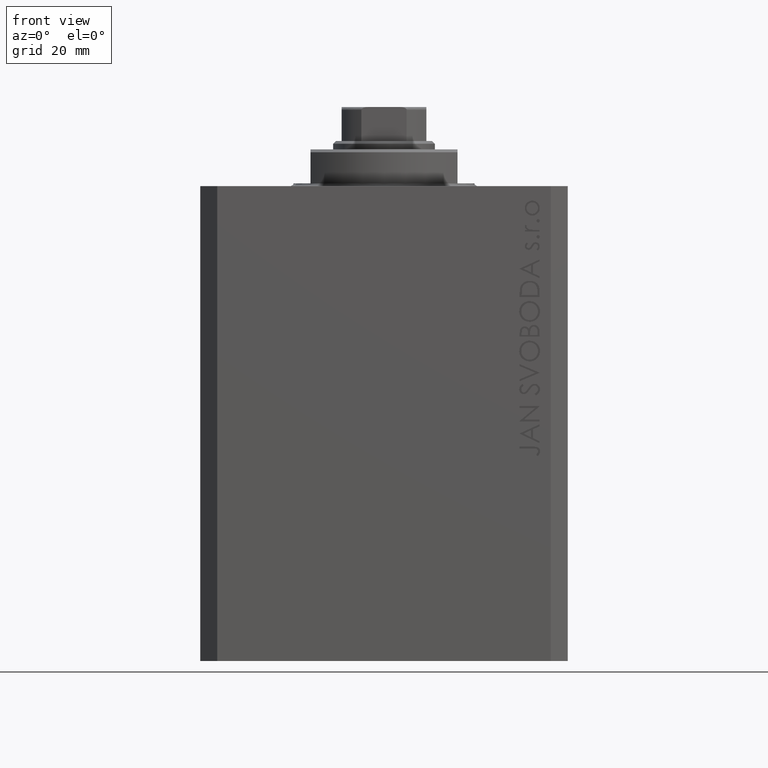
[diagram: clean part render]
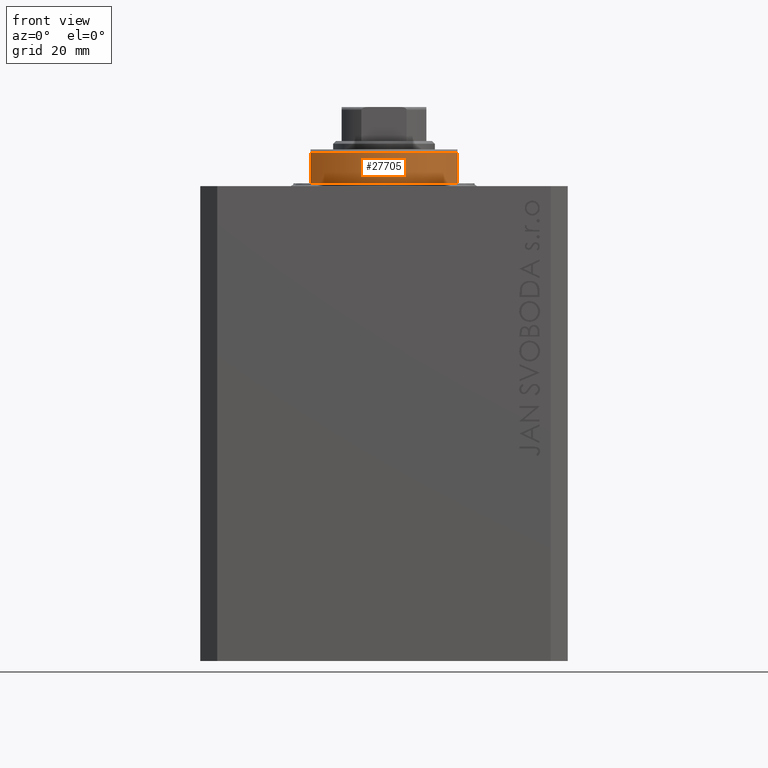
[diagram: same view with one face highlighted and labeled with its STEP entity id]
A machine part, front view. The second image highlights one B-rep face of the part: STEP entity #27705.
In plain terms, the highlighted cylindrical surface (partial cylindrical patch) has radius 16 mm, axis along (0, 0, -1).
Its self-contained STEP definition (entity closure, byte-faithful):
#54 = ORIENTED_EDGE ( 'NONE', *, *, #38173, .T. ) ;
#832 = CARTESIAN_POINT ( 'NONE',  ( 13.00000000000000000, -9.327379053088815652, -0.4999999999999995559 ) ) ;
#2363 = VECTOR ( 'NONE', #18549, 1000.000000000000000 ) ;
#4165 = CARTESIAN_POINT ( 'NONE',  ( 0.000000000000000000, 0.000000000000000000, -6.500000000000000000 ) ) ;
#4376 = CARTESIAN_POINT ( 'NONE',  ( 0.000000000000000000, 0.000000000000000000, -0.4999999999999995559 ) ) ;
#5139 = CARTESIAN_POINT ( 'NONE',  ( 13.00000000000000000, -9.327379053088815652, -6.000000000000023981 ) ) ;
#6874 = DIRECTION ( 'NONE',  ( -1.000000000000000000, 0.000000000000000000, 0.000000000000000000 ) ) ;
#7684 = AXIS2_PLACEMENT_3D ( 'NONE', #4376, #7726, #36829 ) ;
#7726 = DIRECTION ( 'NONE',  ( -0.000000000000000000, -0.000000000000000000, -1.000000000000000000 ) ) ;
#8230 = VECTOR ( 'NONE', #45133, 1000.000000000000000 ) ;
#10945 = CARTESIAN_POINT ( 'NONE',  ( 0.000000000000000000, 0.000000000000000000, -6.000000000000023981 ) ) ;
#14252 = AXIS2_PLACEMENT_3D ( 'NONE', #4165, #41373, #30392 ) ;
#14513 = LINE ( 'NONE', #26414, #2363 ) ;
#14834 = EDGE_LOOP ( 'NONE', ( #44945, #15483, #54, #18739 ) ) ;
#15483 = ORIENTED_EDGE ( 'NONE', *, *, #37684, .T. ) ;
#15833 = VERTEX_POINT ( 'NONE', #832 ) ;
#15954 = CARTESIAN_POINT ( 'NONE',  ( -13.00000000000000000, -9.327379053088815652, -0.4999999999999995559 ) ) ;
#16954 = CARTESIAN_POINT ( 'NONE',  ( 13.00000000000000000, -9.327379053088813876, -6.500000000000000000 ) ) ;
#17485 = CIRCLE ( 'NONE', #45686, 16.00000000000000000 ) ;
#18549 = DIRECTION ( 'NONE',  ( 0.000000000000000000, 0.000000000000000000, -1.000000000000000000 ) ) ;
#18739 = ORIENTED_EDGE ( 'NONE', *, *, #33795, .T. ) ;
#21266 = VERTEX_POINT ( 'NONE', #5139 ) ;
#26342 = CYLINDRICAL_SURFACE ( 'NONE', #14252, 16.00000000000000000 ) ;
#26414 = CARTESIAN_POINT ( 'NONE',  ( -13.00000000000000000, -9.327379053088813876, -6.500000000000000000 ) ) ;
#26459 = CARTESIAN_POINT ( 'NONE',  ( -13.00000000000000000, -9.327379053088815652, -6.000000000000023981 ) ) ;
#27705 = ADVANCED_FACE ( 'NONE', ( #44719 ), #26342, .T. ) ;
#28885 = EDGE_CURVE ( 'NONE', #15833, #21266, #41787, .T. ) ;
#30392 = DIRECTION ( 'NONE',  ( 1.000000000000000000, 0.000000000000000000, 0.000000000000000000 ) ) ;
#33795 = EDGE_CURVE ( 'NONE', #45457, #21266, #17485, .T. ) ;
#34336 = CIRCLE ( 'NONE', #7684, 16.00000000000000000 ) ;
#36829 = DIRECTION ( 'NONE',  ( 1.000000000000000000, 0.000000000000000000, 0.000000000000000000 ) ) ;
#37684 = EDGE_CURVE ( 'NONE', #15833, #44374, #34336, .T. ) ;
#38173 = EDGE_CURVE ( 'NONE', #44374, #45457, #14513, .T. ) ;
#39574 = DIRECTION ( 'NONE',  ( 0.000000000000000000, 0.000000000000000000, 1.000000000000000000 ) ) ;
#41373 = DIRECTION ( 'NONE',  ( -0.000000000000000000, -0.000000000000000000, 1.000000000000000000 ) ) ;
#41787 = LINE ( 'NONE', #16954, #8230 ) ;
#44374 = VERTEX_POINT ( 'NONE', #15954 ) ;
#44719 = FACE_OUTER_BOUND ( 'NONE', #14834, .T. ) ;
#44945 = ORIENTED_EDGE ( 'NONE', *, *, #28885, .F. ) ;
#45133 = DIRECTION ( 'NONE',  ( 0.000000000000000000, 0.000000000000000000, -1.000000000000000000 ) ) ;
#45457 = VERTEX_POINT ( 'NONE', #26459 ) ;
#45686 = AXIS2_PLACEMENT_3D ( 'NONE', #10945, #39574, #6874 ) ;